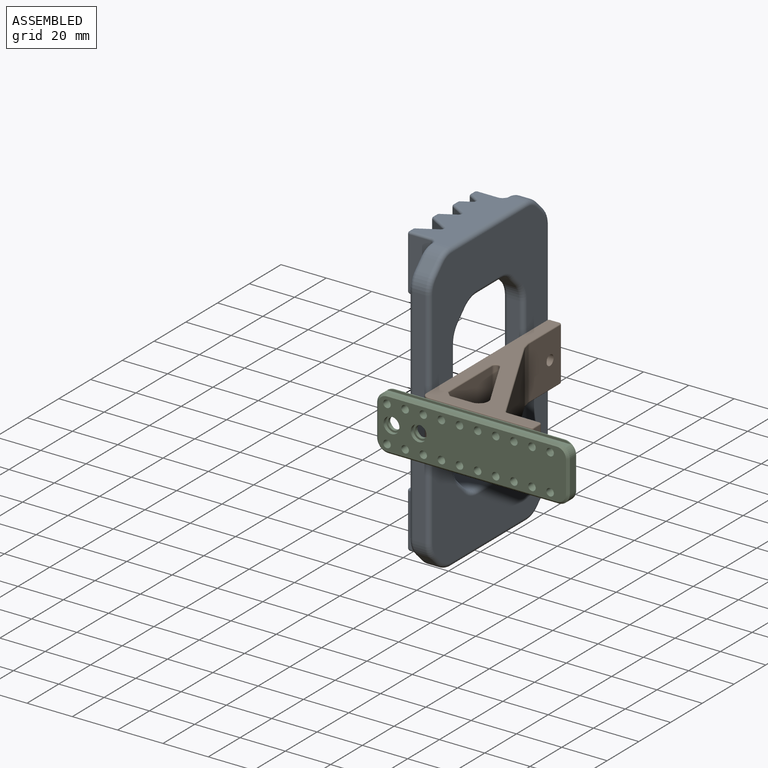
[diagram: assembled view]
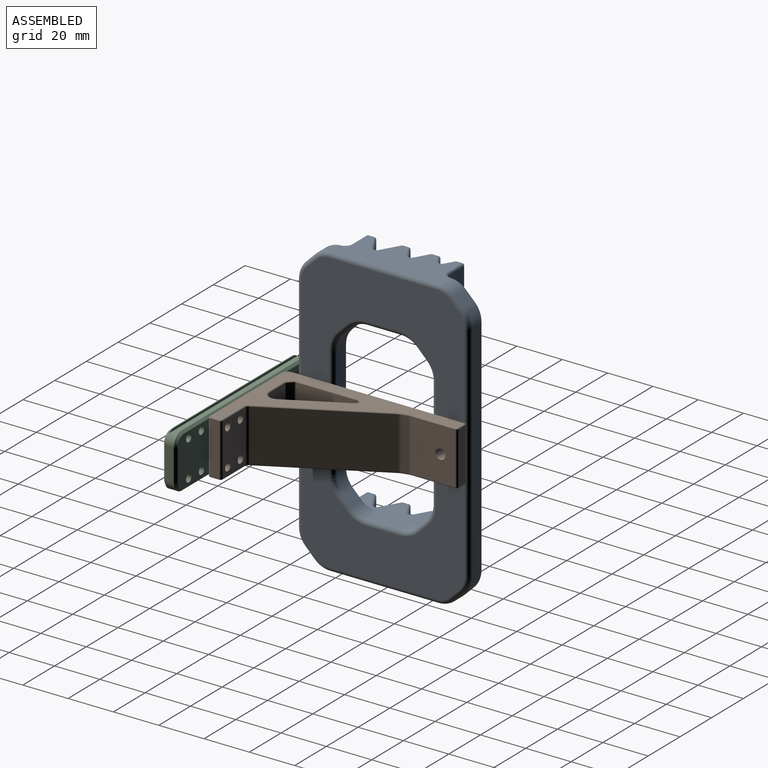
[diagram: assembled view, second angle]
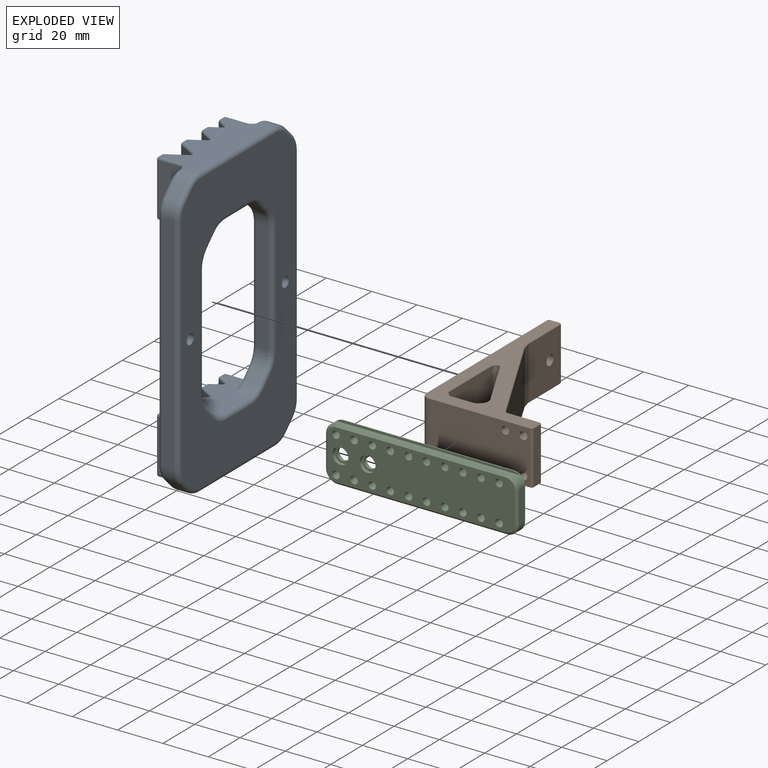
[diagram: exploded view]
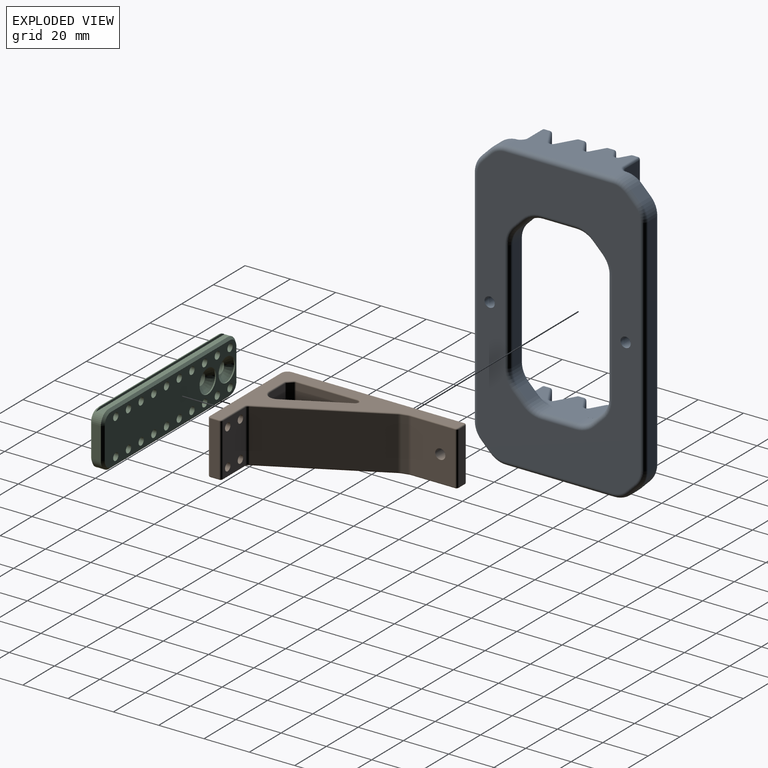
[diagram: exploded view, second angle]
ASSEMBLY  parts=3 mates=6
PART A: 269 faces, bbox 77.7x135.3x21.3 mm
  f0: plane 123.5x19.71mm, normal (0,0,1), area 1459.3mm2, adj f34,f95,f96,f97,f98,f99,f100,f101
  f1: plane 123.5x72mm, normal (0,0,-1), area 5117.8mm2, adj f33,f35,f63,f64,f65,f66,f67,f68
  f2: plane 23x9.13mm, normal (1,0,0), area 207mm2, adj f128,f164,f165,f170,f245
  f3: plane 23x9.13mm, normal (-1,0,0), area 207mm2, adj f127,f154,f155,f192,f258
  f4: plane 23x2.42mm, normal (0,0,1), area 55.7mm2, adj f139,f140,f197,f226
  f5: plane 23x2.45mm, normal (0,0,1), area 56.4mm2, adj f137,f142,f203,f238
  f6: plane 23x2.76mm, normal (0,0,1), area 63.5mm2, adj f132,f144,f209,f237
  f7: plane 23x2.42mm, normal (0,0,1), area 55.7mm2, adj f131,f138,f215,f225
  f8: plane 23x4mm, normal (0.87,0,0.5), area 106.2mm2, adj f144,f146,f211,f233
  f9: plane 23x4mm, normal (-0.87,0,0.5), area 106.2mm2, adj f131,f146,f213,f229
  f10: plane 23x6mm, normal (-0.87,0,0.5), area 159.3mm2, adj f132,f148,f207,f241
  f11: plane 23x6mm, normal (0.87,0,0.5), area 159.3mm2, adj f142,f148,f205,f242
  f12: plane 23x8mm, normal (0.87,0,0.5), area 212.5mm2, adj f140,f147,f199,f230
  f13: plane 23x8mm, normal (-0.87,0,0.5), area 212.5mm2, adj f137,f147,f201,f234
  f14: plane 23x2.42mm, normal (0,0,1), area 55.7mm2, adj f127,f135,f190,f262
  f15: plane 99.22x5.2mm, normal (-1,0,0), area 515.9mm2, adj f49,f50,f94,f108
  f16: plane 23x2.45mm, normal (0,0,1), area 56.4mm2, adj f134,f141,f184,f263
  f17: plane 23x2.76mm, normal (0,0,1), area 63.5mm2, adj f129,f143,f178,f253
  f18: plane 99.22x5.2mm, normal (1,0,0), area 515.9mm2, adj f53,f54,f79,f99
  f19: plane 23x2.42mm, normal (0,0,1), area 55.7mm2, adj f128,f145,f172,f247
  f20: plane 23x4mm, normal (0.87,0,0.5), area 106.2mm2, adj f129,f130,f176,f251
  f21: plane 23x4mm, normal (-0.87,0,0.5), area 106.2mm2, adj f130,f145,f174,f249
  f22: plane 23x6mm, normal (-0.87,0,0.5), area 159.3mm2, adj f133,f143,f180,f255
  f23: plane 23x6mm, normal (0.87,0,0.5), area 159.3mm2, adj f133,f134,f182,f259
  f24: plane 23x8mm, normal (0.87,0,0.5), area 212.5mm2, adj f135,f136,f188,f266
  f25: plane 23x8mm, normal (-0.87,0,0.5), area 212.5mm2, adj f136,f141,f186,f267
  f26: plane 23x9.13mm, normal (1,0,0), area 207mm2, adj f138,f159,f160,f217,f221
  f27: plane 23x9.13mm, normal (-1,0,0), area 207mm2, adj f139,f152,f153,f195,f222
  f28: plane 123.5x19.4mm, normal (0,0,1), area 1421.1mm2, adj f36,f104,f105,f106,f107,f108,f109,f110
  f29: plane 47.72x18.2mm, normal (0,1,0), area 654.6mm2, adj f47,f48,f87,f103,f104,f194,f195,f197
  f30: plane 47.72x18.2mm, normal (0,-1,0), area 654.6mm2, adj f51,f52,f86,f95,f112,f169,f170,f172
  f31: plane 41.31x18.27mm, normal (0,-1,0), area 398.1mm2, adj f55,f56,f70,f149,f150,f151,f161,f162
  f32: plane 41.31x18.27mm, normal (0,1,0), area 398.1mm2, adj f61,f62,f71,f156,f157,f158,f166,f167
  f33: cylinder r=2.25mm len=6.97mm, axis (0,0,1), area 98.5mm2, adj f1,f34
  f34: cone r=2.25mm half-angle=45deg, axis (0,0,1), area 66.7mm2, adj f0,f33
  f35: cylinder r=2.25mm len=6.97mm, axis (0,0,1), area 98.5mm2, adj f1,f36
  f36: cone r=2.25mm half-angle=45deg, axis (0,0,1), area 66.7mm2, adj f28,f35
  f37: plane 49.22x5.2mm, normal (-1,0,0), area 255.9mm2, adj f57,f58,f63,f116
  f38: plane 49.22x5.2mm, normal (1,0,0), area 255.9mm2, adj f59,f60,f78,f123
  f39: plane 5.2x4.14mm, normal (0.71,0.71,0), area 30.5mm2, adj f59,f61,f75,f121
  f40: plane 5.2x4.14mm, normal (-0.71,0.71,0), area 30.5mm2, adj f57,f62,f67,f114
  f41: plane 5.2x4.14mm, normal (0.71,-0.71,0), area 30.5mm2, adj f55,f60,f74,f125
  f42: plane 5.2x4.14mm, normal (-0.71,-0.71,0), area 30.5mm2, adj f56,f58,f66,f118
  f43: plane 5.2x4.14mm, normal (0.71,-0.71,0), area 30.5mm2, adj f51,f53,f82,f97
  f44: plane 5.2x4.14mm, normal (-0.71,-0.71,0), area 30.5mm2, adj f49,f52,f90,f110
  f45: plane 5.2x4.14mm, normal (-0.71,0.71,0), area 30.5mm2, adj f47,f50,f91,f106
  f46: plane 5.2x4.14mm, normal (0.71,0.71,0), area 30.5mm2, adj f48,f54,f83,f101
  f47: cylinder r=10mm len=7.07mm, axis (0,0,-1), area 40.8mm2, adj f29,f45,f89,f105
  f48: cylinder r=10mm len=7.07mm, axis (0,0,-1), area 40.8mm2, adj f29,f46,f85,f102
  f49: cylinder r=10mm len=7.07mm, axis (0,0,1), area 40.8mm2, adj f15,f44,f92,f109
  f50: cylinder r=10mm len=7.07mm, axis (0,0,1), area 40.8mm2, adj f15,f45,f93,f107
  f51: cylinder r=10mm len=7.07mm, axis (0,0,1), area 40.8mm2, adj f30,f43,f84,f96
  f52: cylinder r=10mm len=7.07mm, axis (0,0,1), area 40.8mm2, adj f30,f44,f88,f111
  f53: cylinder r=10mm len=7.07mm, axis (0,0,-1), area 40.8mm2, adj f18,f43,f80,f98
  f54: cylinder r=10mm len=7.07mm, axis (0,0,-1), area 40.8mm2, adj f18,f46,f81,f100
  f55: cylinder r=10mm len=7.07mm, axis (0,0,-1), area 40.8mm2, adj f31,f41,f72,f126
  f56: cylinder r=10mm len=7.07mm, axis (0,0,-1), area 40.8mm2, adj f31,f42,f68,f119
  f57: cylinder r=10mm len=7.07mm, axis (0,0,1), area 40.8mm2, adj f37,f40,f65,f115
  f58: cylinder r=10mm len=7.07mm, axis (0,0,1), area 40.8mm2, adj f37,f42,f64,f117
  f59: cylinder r=10mm len=7.07mm, axis (0,0,-1), area 40.8mm2, adj f38,f39,f77,f122
  f60: cylinder r=10mm len=7.07mm, axis (0,0,-1), area 40.8mm2, adj f38,f41,f76,f124
  f61: cylinder r=10mm len=7.07mm, axis (0,0,1), area 40.8mm2, adj f32,f39,f73,f120
  f62: cylinder r=10mm len=7.07mm, axis (0,0,1), area 40.8mm2, adj f32,f40,f69,f113
  f63: cylinder r=2mm len=49.22mm, axis (0,1,0), area 154.6mm2, adj f1,f37,f64,f65
  f64: torus R=12mm, axis (0,0,1), area 26.5mm2, adj f1,f58,f63,f66
  f65: torus R=12mm, axis (0,0,1), area 26.5mm2, adj f1,f57,f63,f67
  f66: cylinder r=2mm len=5.56mm, axis (0.71,-0.71,0), area 18.4mm2, adj f1,f42,f64,f68
  f67: cylinder r=2mm len=5.56mm, axis (0.71,0.71,0), area 18.4mm2, adj f1,f40,f65,f69
  f68: torus R=12mm, axis (0,0,1), area 26.5mm2, adj f1,f56,f66,f70
  f69: torus R=12mm, axis (0,0,1), area 26.5mm2, adj f1,f62,f67,f71
  f70: cylinder r=2mm len=14.95mm, axis (1,0,0), area 47mm2, adj f1,f31,f68,f72
  f71: cylinder r=2mm len=14.95mm, axis (-1,0,0), area 47mm2, adj f1,f32,f69,f73
  f72: torus R=12mm, axis (0,0,1), area 26.5mm2, adj f1,f55,f70,f74
  f73: torus R=12mm, axis (0,0,1), area 26.5mm2, adj f1,f61,f71,f75
  f74: cylinder r=2mm len=5.56mm, axis (-0.71,-0.71,0), area 18.4mm2, adj f1,f41,f72,f76
  f75: cylinder r=2mm len=5.56mm, axis (-0.71,0.71,0), area 18.4mm2, adj f1,f39,f73,f77
  f76: torus R=12mm, axis (0,0,1), area 26.5mm2, adj f1,f60,f74,f78
  f77: torus R=12mm, axis (0,0,1), area 26.5mm2, adj f1,f59,f75,f78
  f78: cylinder r=2mm len=49.22mm, axis (0,-1,0), area 154.6mm2, adj f1,f38,f76,f77
  f79: cylinder r=2mm len=99.22mm, axis (0,1,0), area 311.7mm2, adj f1,f18,f80,f81
  f80: torus R=8mm, axis (0,0,1), area 22.9mm2, adj f1,f53,f79,f82
  f81: torus R=8mm, axis (0,0,1), area 22.9mm2, adj f1,f54,f79,f83
  f82: cylinder r=2mm len=5.56mm, axis (-0.71,-0.71,0), area 18.4mm2, adj f1,f43,f80,f84
  f83: cylinder r=2mm len=5.56mm, axis (-0.71,0.71,0), area 18.4mm2, adj f1,f46,f81,f85
  f84: torus R=8mm, axis (0,0,1), area 22.9mm2, adj f1,f51,f82,f86
  f85: torus R=8mm, axis (0,0,1), area 22.9mm2, adj f1,f48,f83,f87
  f86: cylinder r=2mm len=47.72mm, axis (1,0,0), area 149.9mm2, adj f1,f30,f84,f88
  f87: cylinder r=2mm len=47.72mm, axis (-1,0,0), area 149.9mm2, adj f1,f29,f85,f89
  f88: torus R=8mm, axis (0,0,1), area 22.9mm2, adj f1,f52,f86,f90
  f89: torus R=8mm, axis (0,0,1), area 22.9mm2, adj f1,f47,f87,f91
  f90: cylinder r=2mm len=5.56mm, axis (0.71,-0.71,0), area 18.4mm2, adj f1,f44,f88,f92
  f91: cylinder r=2mm len=5.56mm, axis (0.71,0.71,0), area 18.4mm2, adj f1,f45,f89,f93
  f92: torus R=8mm, axis (0,0,1), area 22.9mm2, adj f1,f49,f90,f94
  f93: torus R=8mm, axis (0,0,1), area 22.9mm2, adj f1,f50,f91,f94
  f94: cylinder r=2mm len=99.22mm, axis (0,-1,0), area 311.7mm2, adj f1,f15,f92,f93
  f95: cylinder r=2mm len=2mm, axis (1,0,0), area 1.2mm2, adj f0,f30,f96,f164
  f96: torus R=8mm, axis (0,0,1), area 22.9mm2, adj f0,f51,f95,f97
  f97: cylinder r=2mm len=5.56mm, axis (-0.71,-0.71,0), area 18.4mm2, adj f0,f43,f96,f98
  f98: torus R=8mm, axis (0,0,1), area 22.9mm2, adj f0,f53,f97,f99
  f99: cylinder r=2mm len=99.22mm, axis (0,1,0), area 311.7mm2, adj f0,f18,f98,f100
  f100: torus R=8mm, axis (0,0,1), area 22.9mm2, adj f0,f54,f99,f101
  f101: cylinder r=2mm len=5.56mm, axis (-0.71,0.71,0), area 18.4mm2, adj f0,f46,f100,f102
  f102: torus R=8mm, axis (0,0,1), area 22.9mm2, adj f0,f48,f101,f103
  f103: cylinder r=2mm len=2mm, axis (-1,0,0), area 1.2mm2, adj f0,f29,f102,f159
  f104: cylinder r=2mm len=2mm, axis (1,0,0), area 0.3mm2, adj f28,f29,f105,f153
  f105: torus R=8mm, axis (0,0,1), area 22.9mm2, adj f28,f47,f104,f106
  f106: cylinder r=2mm len=5.56mm, axis (0.71,0.71,0), area 18.4mm2, adj f28,f45,f105,f107
  f107: torus R=8mm, axis (0,0,1), area 22.9mm2, adj f28,f50,f106,f108
  f108: cylinder r=2mm len=99.22mm, axis (0,1,0), area 311.7mm2, adj f15,f28,f107,f109
  f109: torus R=8mm, axis (0,0,1), area 22.9mm2, adj f28,f49,f108,f110
  f110: cylinder r=2mm len=5.56mm, axis (0.71,-0.71,0), area 18.4mm2, adj f28,f44,f109,f111
  f111: torus R=8mm, axis (0,0,1), area 22.9mm2, adj f28,f52,f110,f112
  f112: cylinder r=2mm len=2mm, axis (-1,0,0), area 0.3mm2, adj f28,f30,f111,f154
  f113: torus R=12mm, axis (0,0,1), area 11.3mm2, adj f62,f114,f168
  f114: cylinder r=2mm len=5.56mm, axis (0.71,0.71,0), area 18.3mm2, adj f0,f40,f113,f115,f167
  f115: torus R=12mm, axis (0,0,1), area 26.5mm2, adj f0,f57,f114,f116
  f116: cylinder r=2mm len=49.22mm, axis (0,-1,0), area 154.6mm2, adj f0,f37,f115,f117
  f117: torus R=12mm, axis (0,0,1), area 26.5mm2, adj f0,f58,f116,f118
  f118: cylinder r=2mm len=5.56mm, axis (0.71,-0.71,0), area 18.3mm2, adj f0,f42,f117,f119,f162
  f119: torus R=12mm, axis (0,0,1), area 11.3mm2, adj f56,f118,f163
  f120: torus R=12mm, axis (0,0,1), area 11.3mm2, adj f61,f121,f158
  f121: cylinder r=2mm len=5.56mm, axis (-0.71,0.71,0), area 18.3mm2, adj f28,f39,f120,f122,f157
  f122: torus R=12mm, axis (0,0,1), area 26.5mm2, adj f28,f59,f121,f123
  f123: cylinder r=2mm len=49.22mm, axis (0,1,0), area 154.6mm2, adj f28,f38,f122,f124
  f124: torus R=12mm, axis (0,0,1), area 26.5mm2, adj f28,f60,f123,f125
  f125: cylinder r=2mm len=5.56mm, axis (-0.71,-0.71,0), area 18.3mm2, adj f28,f41,f124,f126,f150
  f126: torus R=12mm, axis (0,0,1), area 11.3mm2, adj f55,f125,f149
  f127: cylinder r=1mm len=23mm, axis (0,-1,0), area 36.1mm2, adj f3,f14,f191,f260
  f128: cylinder r=1mm len=23mm, axis (0,1,0), area 36.1mm2, adj f2,f19,f171,f246
  f129: cylinder r=1mm len=23mm, axis (0,1,0), area 24.1mm2, adj f17,f20,f177,f252
  f130: cylinder r=1mm len=23mm, axis (0,1,0), area 48.2mm2, adj f20,f21,f175,f250
  f131: cylinder r=1mm len=23mm, axis (0,-1,0), area 24.1mm2, adj f7,f9,f214,f227
  f132: cylinder r=1mm len=23mm, axis (0,-1,0), area 24.1mm2, adj f6,f10,f208,f239
  f133: cylinder r=1mm len=23mm, axis (0,1,0), area 48.2mm2, adj f22,f23,f181,f257
  f134: cylinder r=1mm len=23mm, axis (0,1,0), area 24.1mm2, adj f16,f23,f183,f261
  f135: cylinder r=1mm len=23mm, axis (0,1,0), area 24.1mm2, adj f14,f24,f189,f264
  f136: cylinder r=1mm len=23mm, axis (0,1,0), area 48.2mm2, adj f24,f25,f187,f268
  f137: cylinder r=1mm len=23mm, axis (0,-1,0), area 24.1mm2, adj f5,f13,f202,f236
  f138: cylinder r=1mm len=23mm, axis (0,1,0), area 36.1mm2, adj f7,f26,f216,f223
  f139: cylinder r=1mm len=23mm, axis (0,-1,0), area 36.1mm2, adj f4,f27,f196,f224
  f140: cylinder r=1mm len=23mm, axis (0,1,0), area 24.1mm2, adj f4,f12,f198,f228
  f141: cylinder r=1mm len=23mm, axis (0,-1,0), area 24.1mm2, adj f16,f25,f185,f265
  f142: cylinder r=1mm len=23mm, axis (0,1,0), area 24.1mm2, adj f5,f11,f204,f240
  f143: cylinder r=1mm len=23mm, axis (0,-1,0), area 24.1mm2, adj f17,f22,f179,f254
  f144: cylinder r=1mm len=23mm, axis (0,1,0), area 24.1mm2, adj f6,f8,f210,f235
  f145: cylinder r=1mm len=23mm, axis (0,-1,0), area 24.1mm2, adj f19,f21,f173,f248
  f146: cylinder r=1mm len=23mm, axis (0,1,0), area 48.2mm2, adj f8,f9,f212,f231
  f147: cylinder r=1mm len=23mm, axis (0,1,0), area 48.2mm2, adj f12,f13,f200,f232
  f148: cylinder r=1mm len=23mm, axis (0,1,0), area 48.2mm2, adj f10,f11,f206,f243
  f149: bspline ~8.74x4mm, area 12.5mm2, adj f31,f126,f150
  f150: bspline ~2.09x2.07mm, area 2.5mm2, adj f31,f125,f149,f151
  f151: cylinder r=2mm len=7.17mm, axis (-1,0,0), area 16.5mm2, adj f28,f31,f150,f220
  f152: cylinder r=2mm len=25mm, axis (0,1,0), area 72.5mm2, adj f27,f28,f153,f220
  f153: torus R=4mm, axis (-1,0,0), area 5.2mm2, adj f27,f104,f152,f194
  f154: torus R=4mm, axis (-1,0,0), area 5.2mm2, adj f3,f112,f155,f193
  f155: cylinder r=2mm len=25mm, axis (0,1,0), area 72.5mm2, adj f3,f28,f154,f256
  f156: cylinder r=2mm len=7.17mm, axis (-1,0,0), area 16.5mm2, adj f28,f32,f157,f256
  f157: bspline ~2.03x2mm, area 2.5mm2, adj f32,f121,f156,f158
  f158: bspline ~8.74x4mm, area 12.5mm2, adj f32,f120,f157
  f159: torus R=4mm, axis (-1,0,0), area 5.2mm2, adj f26,f103,f160,f218
  f160: cylinder r=2mm len=25mm, axis (0,-1,0), area 72.5mm2, adj f0,f26,f159,f219
  f161: cylinder r=2mm len=7.17mm, axis (-1,0,0), area 16.5mm2, adj f0,f31,f162,f219
  f162: bspline ~2.03x2mm, area 2.5mm2, adj f31,f118,f161,f163
  f163: bspline ~8.62x4mm, area 11.6mm2, adj f31,f119,f162
  f164: torus R=4mm, axis (-1,0,0), area 5.2mm2, adj f2,f95,f165,f169
  f165: cylinder r=2mm len=25mm, axis (0,-1,0), area 72.5mm2, adj f0,f2,f164,f244
  f166: cylinder r=2mm len=7.17mm, axis (-1,0,0), area 16.5mm2, adj f0,f32,f167,f244
  f167: bspline ~2.03x2mm, area 2.5mm2, adj f32,f114,f166,f168
  f168: bspline ~8.62x4mm, area 11.6mm2, adj f32,f113,f167
  f169: bspline ~4.55x3mm, area 4.6mm2, adj f30,f164,f170
  f170: cylinder r=1mm len=9.13mm, axis (0,0,1), area 14.3mm2, adj f2,f30,f169,f171
  f171: sphere r=1mm, area 1mm2, adj f128,f170,f172
  f172: cylinder r=1mm len=2.42mm, axis (-1,0,0), area 3.8mm2, adj f19,f30,f171,f173
  f173: sphere r=1mm, area 1mm2, adj f145,f172,f174
  f174: cylinder r=1mm len=4.5mm, axis (0.5,0,0.87), area 7.3mm2, adj f21,f30,f173,f175
  f175: torus R=2mm, axis (0,1,0), area 4.5mm2, adj f30,f130,f174,f176
  f176: cylinder r=1mm len=4.5mm, axis (0.5,0,-0.87), area 7.3mm2, adj f20,f30,f175,f177
  f177: sphere r=1mm, area 0.7mm2, adj f129,f176,f178
  f178: cylinder r=1mm len=2.76mm, axis (-1,0,0), area 4.3mm2, adj f17,f30,f177,f179
  f179: sphere r=1mm, area 1mm2, adj f143,f178,f180
  f180: cylinder r=1mm len=6.5mm, axis (0.5,0,0.87), area 10.9mm2, adj f22,f30,f179,f181
  f181: torus R=2mm, axis (0,1,0), area 4.5mm2, adj f30,f133,f180,f182
  f182: cylinder r=1mm len=6.5mm, axis (0.5,0,-0.87), area 10.9mm2, adj f23,f30,f181,f183
  f183: sphere r=1mm, area 0.7mm2, adj f134,f182,f184
  f184: cylinder r=1mm len=2.45mm, axis (-1,0,0), area 3.9mm2, adj f16,f30,f183,f185
  f185: sphere r=1mm, area 1mm2, adj f141,f184,f186
  f186: cylinder r=1mm len=8.5mm, axis (0.5,0,0.87), area 14.5mm2, adj f25,f30,f185,f187
  f187: torus R=2mm, axis (0,1,0), area 4.5mm2, adj f30,f136,f186,f188
  f188: cylinder r=1mm len=8.5mm, axis (0.5,0,-0.87), area 14.5mm2, adj f24,f30,f187,f189
  f189: sphere r=1mm, area 0.7mm2, adj f135,f188,f190
  f190: cylinder r=1mm len=2.42mm, axis (-1,0,0), area 3.8mm2, adj f14,f30,f189,f191
  f191: sphere r=1mm, area 1.6mm2, adj f127,f190,f192
  f192: cylinder r=1mm len=9.13mm, axis (0,0,-1), area 14.3mm2, adj f3,f30,f191,f193
  f193: bspline ~3.87x3mm, area 4.6mm2, adj f30,f154,f192
  f194: bspline ~3.87x3mm, area 4.6mm2, adj f29,f153,f195
  f195: cylinder r=1mm len=9.13mm, axis (0,0,1), area 14.3mm2, adj f27,f29,f194,f196
  f196: sphere r=1mm, area 1.6mm2, adj f139,f195,f197
  f197: cylinder r=1mm len=2.42mm, axis (1,0,0), area 3.8mm2, adj f4,f29,f196,f198
  f198: sphere r=1mm, area 0.7mm2, adj f140,f197,f199
  f199: cylinder r=1mm len=8.5mm, axis (-0.5,0,0.87), area 14.5mm2, adj f12,f29,f198,f200
  f200: torus R=2mm, axis (0,1,0), area 4.5mm2, adj f29,f147,f199,f201
  f201: cylinder r=1mm len=8.5mm, axis (-0.5,0,-0.87), area 14.5mm2, adj f13,f29,f200,f202
  f202: sphere r=1mm, area 1mm2, adj f137,f201,f203
  f203: cylinder r=1mm len=2.45mm, axis (1,0,0), area 3.9mm2, adj f5,f29,f202,f204
  f204: sphere r=1mm, area 0.7mm2, adj f142,f203,f205
  f205: cylinder r=1mm len=6.5mm, axis (-0.5,0,0.87), area 10.9mm2, adj f11,f29,f204,f206
  f206: torus R=2mm, axis (0,1,0), area 4.5mm2, adj f29,f148,f205,f207
  f207: cylinder r=1mm len=6.5mm, axis (-0.5,0,-0.87), area 10.9mm2, adj f10,f29,f206,f208
  f208: sphere r=1mm, area 1mm2, adj f132,f207,f209
  f209: cylinder r=1mm len=2.76mm, axis (1,0,0), area 4.3mm2, adj f6,f29,f208,f210
  f210: sphere r=1mm, area 0.7mm2, adj f144,f209,f211
  f211: cylinder r=1mm len=4.5mm, axis (-0.5,0,0.87), area 7.3mm2, adj f8,f29,f210,f212
  f212: torus R=2mm, axis (0,1,0), area 4.5mm2, adj f29,f146,f211,f213
  f213: cylinder r=1mm len=4.5mm, axis (-0.5,0,-0.87), area 7.3mm2, adj f9,f29,f212,f214
  f214: sphere r=1mm, area 1mm2, adj f131,f213,f215
  f215: cylinder r=1mm len=2.42mm, axis (1,0,0), area 3.8mm2, adj f7,f29,f214,f216
  f216: sphere r=1mm, area 1mm2, adj f138,f215,f217
  f217: cylinder r=1mm len=9.13mm, axis (0,0,-1), area 14.3mm2, adj f26,f29,f216,f218
  f218: bspline ~4.55x3mm, area 4.6mm2, adj f29,f159,f217
  f219: bspline ~3x3mm, area 2.1mm2, adj f160,f161,f221
  f220: bspline ~3x3mm, area 2.1mm2, adj f151,f152,f222
  f221: cylinder r=1mm len=9mm, axis (0,0,1), area 14.1mm2, adj f26,f31,f219,f223
  f222: cylinder r=1mm len=9mm, axis (0,0,-1), area 14.1mm2, adj f27,f31,f220,f224
  f223: sphere r=1mm, area 2.1mm2, adj f138,f221,f225
  f224: sphere r=1mm, area 1.6mm2, adj f139,f222,f226
  f225: cylinder r=1mm len=2.42mm, axis (1,0,0), area 3.8mm2, adj f7,f31,f223,f227
  f226: cylinder r=1mm len=2.42mm, axis (1,0,0), area 3.8mm2, adj f4,f31,f224,f228
  f227: sphere r=1mm, area 1mm2, adj f131,f225,f229
  f228: sphere r=1mm, area 1mm2, adj f140,f226,f230
  f229: cylinder r=1mm len=4.5mm, axis (0.5,0,0.87), area 7.3mm2, adj f9,f31,f227,f231
  f230: cylinder r=1mm len=8.5mm, axis (0.5,0,-0.87), area 14.5mm2, adj f12,f31,f228,f232
  f231: torus R=2mm, axis (0,-1,0), area 4.5mm2, adj f31,f146,f229,f233
  f232: torus R=2mm, axis (0,-1,0), area 4.5mm2, adj f31,f147,f230,f234
  f233: cylinder r=1mm len=4.5mm, axis (0.5,0,-0.87), area 7.3mm2, adj f8,f31,f231,f235
  f234: cylinder r=1mm len=8.5mm, axis (0.5,0,0.87), area 14.5mm2, adj f13,f31,f232,f236
  f235: sphere r=1mm, area 1mm2, adj f144,f233,f237
  f236: sphere r=1mm, area 1mm2, adj f137,f234,f238
  f237: cylinder r=1mm len=2.76mm, axis (1,0,0), area 4.3mm2, adj f6,f31,f235,f239
  f238: cylinder r=1mm len=2.45mm, axis (1,0,0), area 3.9mm2, adj f5,f31,f236,f240
  f239: sphere r=1mm, area 1mm2, adj f132,f237,f241
  f240: sphere r=1mm, area 1mm2, adj f142,f238,f242
  f241: cylinder r=1mm len=6.5mm, axis (0.5,0,0.87), area 10.9mm2, adj f10,f31,f239,f243
  f242: cylinder r=1mm len=6.5mm, axis (0.5,0,-0.87), area 10.9mm2, adj f11,f31,f240,f243
  f243: torus R=2mm, axis (0,-1,0), area 4.5mm2, adj f31,f148,f241,f242
  f244: bspline ~3x3mm, area 2.1mm2, adj f165,f166,f245
  f245: cylinder r=1mm len=9mm, axis (0,0,-1), area 14.1mm2, adj f2,f32,f244,f246
  f246: sphere r=1mm, area 1mm2, adj f128,f245,f247
  f247: cylinder r=1mm len=2.42mm, axis (-1,0,0), area 3.8mm2, adj f19,f32,f246,f248
  f248: sphere r=1mm, area 1mm2, adj f145,f247,f249
  f249: cylinder r=1mm len=4.5mm, axis (-0.5,0,-0.87), area 7.3mm2, adj f21,f32,f248,f250
  f250: torus R=2mm, axis (0,-1,0), area 4.5mm2, adj f32,f130,f249,f251
  f251: cylinder r=1mm len=4.5mm, axis (-0.5,0,0.87), area 7.3mm2, adj f20,f32,f250,f252
  f252: sphere r=1mm, area 1mm2, adj f129,f251,f253
  f253: cylinder r=1mm len=2.76mm, axis (-1,0,0), area 4.3mm2, adj f17,f32,f252,f254
  f254: sphere r=1mm, area 1mm2, adj f143,f253,f255
  f255: cylinder r=1mm len=6.5mm, axis (-0.5,0,-0.87), area 10.9mm2, adj f22,f32,f254,f257
  f256: bspline ~3x3mm, area 2.1mm2, adj f155,f156,f258
  f257: torus R=2mm, axis (0,-1,0), area 4.5mm2, adj f32,f133,f255,f259
  f258: cylinder r=1mm len=9mm, axis (0,0,1), area 14.1mm2, adj f3,f32,f256,f260
  f259: cylinder r=1mm len=6.5mm, axis (-0.5,0,0.87), area 10.9mm2, adj f23,f32,f257,f261
  f260: sphere r=1mm, area 2.1mm2, adj f127,f258,f262
  f261: sphere r=1mm, area 1mm2, adj f134,f259,f263
  f262: cylinder r=1mm len=2.42mm, axis (-1,0,0), area 3.8mm2, adj f14,f32,f260,f264
  f263: cylinder r=1mm len=2.45mm, axis (-1,0,0), area 3.9mm2, adj f16,f32,f261,f265
  f264: sphere r=1mm, area 1.2mm2, adj f135,f262,f266
  f265: sphere r=1mm, area 1mm2, adj f141,f263,f267
  f266: cylinder r=1mm len=8.5mm, axis (-0.5,0,0.87), area 14.5mm2, adj f24,f32,f264,f268
  f267: cylinder r=1mm len=8.5mm, axis (-0.5,0,-0.87), area 14.5mm2, adj f25,f32,f265,f268
  f268: torus R=2mm, axis (0,-1,0), area 4.5mm2, adj f32,f136,f266,f267
PART B: 80 faces, bbox 49.3x80.3x24 mm
  f0: plane 27.09x23mm, normal (1,0,0), area 607.1mm2, adj f13,f25,f27,f70,f77
  f1: plane 24.83x23mm, normal (-0.88,-0.47,0), area 646.2mm2, adj f24,f25,f66,f73
  f2: plane 76x23mm, normal (-1,0,0), area 1716.2mm2, adj f12,f13,f21,f22,f38,f53
  f3: plane 45x23mm, normal (0,-1,0), area 998.7mm2, adj f14,f15,f16,f17,f18,f22,f34,f49
  f4: plane 23x4mm, normal (1,0,0), area 92mm2, adj f18,f19,f33,f50
  f5: plane 23x14.1mm, normal (0,1,0), area 287.9mm2, adj f14,f15,f16,f17,f19,f28,f37,f54
  f6: plane 47.89x25.36mm, normal (0.88,0.47,0), area 1246.4mm2, adj f28,f30,f41,f58
  f7: plane 23x19.39mm, normal (1,0,0), area 430mm2, adj f12,f20,f31,f46,f61
  f8: plane 23x4mm, normal (0,1,0), area 92mm2, adj f20,f21,f42,f57
  f9: plane 23x9.52mm, normal (0,1,0), area 219mm2, adj f24,f26,f65,f74
  f10: plane 79x48mm, normal (0,0,1), area 942.6mm2, adj f32,f33,f34,f35,f36,f37,f38,f39
  f11: plane 79x48mm, normal (0,0,-1), area 942.6mm2, adj f48,f49,f50,f51,f52,f53,f54,f55
  f12: cylinder r=2.25mm len=6mm, axis (-1,0,0), area 84.8mm2, adj f2,f7
  f13: cylinder r=2.25mm len=6mm, axis (-1,0,0), area 84.8mm2, adj f0,f2
  f14: cylinder r=1.7mm len=6mm, axis (0,-1,0), area 64.1mm2, adj f3,f5
  f15: cylinder r=1.7mm len=6mm, axis (0,-1,0), area 64.1mm2, adj f3,f5
  f16: cylinder r=1.7mm len=6mm, axis (0,-1,0), area 64.1mm2, adj f3,f5
  f17: cylinder r=1.7mm len=6mm, axis (0,-1,0), area 64.1mm2, adj f3,f5
  f18: cylinder r=1mm len=23mm, axis (0,0,-1), area 36.1mm2, adj f3,f4,f32,f48
  f19: cylinder r=1mm len=23mm, axis (0,0,-1), area 36.1mm2, adj f4,f5,f35,f52
  f20: cylinder r=1mm len=23mm, axis (0,0,-1), area 36.1mm2, adj f7,f8,f44,f59
  f21: cylinder r=1mm len=23mm, axis (0,0,-1), area 36.1mm2, adj f2,f8,f40,f55
  f22: cylinder r=3mm len=23mm, axis (0,0,1), area 108.4mm2, adj f2,f3,f36,f51
  f23: plane 23x1.91mm, normal (0.71,0.71,0), area 62.3mm2, adj f26,f27,f69,f78
  f24: cylinder r=4mm len=23mm, axis (0,0,1), area 189.3mm2, adj f1,f9,f64,f72
  f25: cylinder r=1.5mm len=23mm, axis (0,0,1), area 91.6mm2, adj f0,f1,f68,f75
  f26: cylinder r=1mm len=23mm, axis (0,0,1), area 18.1mm2, adj f9,f23,f67,f76
  f27: cylinder r=1mm len=23mm, axis (0,0,-1), area 18.1mm2, adj f0,f23,f71,f79
  f28: cylinder r=1.5mm len=23mm, axis (0,0,-1), area 37.4mm2, adj f5,f6,f39,f56
  f29: plane 23x2.58mm, normal (0.97,0.24,0), area 61.2mm2, adj f30,f31,f45,f62
  f30: cylinder r=5mm len=23mm, axis (0,0,-1), area 28mm2, adj f6,f29,f43,f60
  f31: cylinder r=5mm len=23mm, axis (0,0,1), area 28mm2, adj f7,f29,f47,f63
  f32: torus R=0.5mm, axis (0,0,1), area 1mm2, adj f10,f18,f33,f34
  f33: cylinder r=0.5mm len=4mm, axis (0,-1,0), area 3.1mm2, adj f4,f10,f32,f35
  f34: cylinder r=0.5mm len=45mm, axis (-1,0,0), area 35.3mm2, adj f3,f10,f32,f36
  f35: torus R=0.5mm, axis (0,0,1), area 1mm2, adj f10,f19,f33,f37
  f36: torus R=2.5mm, axis (0,0,1), area 3.5mm2, adj f10,f22,f34,f38
  f37: cylinder r=0.5mm len=14.1mm, axis (1,0,0), area 11.1mm2, adj f5,f10,f35,f39
  f38: cylinder r=0.5mm len=76mm, axis (0,1,0), area 59.7mm2, adj f2,f10,f36,f40
  f39: torus R=2mm, axis (0,0,1), area 1.4mm2, adj f10,f28,f37,f41
  f40: torus R=0.5mm, axis (0,0,1), area 1mm2, adj f10,f21,f38,f42
  f41: cylinder r=0.5mm len=48.13mm, axis (0.47,-0.88,0), area 42.6mm2, adj f6,f10,f39,f43
  f42: cylinder r=0.5mm len=4mm, axis (1,0,0), area 3.1mm2, adj f8,f10,f40,f44
  f43: torus R=5.5mm, axis (0,0,1), area 1mm2, adj f10,f30,f41,f45
  f44: torus R=0.5mm, axis (0,0,1), area 1mm2, adj f10,f20,f42,f46
  f45: cylinder r=0.5mm len=2.7mm, axis (-0.24,0.97,0), area 2.1mm2, adj f10,f29,f43,f47
  f46: cylinder r=0.5mm len=19.39mm, axis (0,-1,0), area 15.2mm2, adj f7,f10,f44,f47
  f47: torus R=5.5mm, axis (0,0,1), area 1mm2, adj f10,f31,f45,f46
  f48: torus R=0.5mm, axis (0,0,1), area 1mm2, adj f11,f18,f49,f50
  f49: cylinder r=0.5mm len=45mm, axis (1,0,0), area 35.3mm2, adj f3,f11,f48,f51
  f50: cylinder r=0.5mm len=4mm, axis (0,1,0), area 3.1mm2, adj f4,f11,f48,f52
  f51: torus R=2.5mm, axis (0,0,1), area 3.5mm2, adj f11,f22,f49,f53
  f52: torus R=0.5mm, axis (0,0,1), area 1mm2, adj f11,f19,f50,f54
  f53: cylinder r=0.5mm len=76mm, axis (0,-1,0), area 59.7mm2, adj f2,f11,f51,f55
  f54: cylinder r=0.5mm len=14.1mm, axis (-1,0,0), area 11.1mm2, adj f5,f11,f52,f56
  f55: torus R=0.5mm, axis (0,0,1), area 1mm2, adj f11,f21,f53,f57
  f56: torus R=2mm, axis (0,0,1), area 1.4mm2, adj f11,f28,f54,f58
  f57: cylinder r=0.5mm len=4mm, axis (-1,0,0), area 3.1mm2, adj f8,f11,f55,f59
  f58: cylinder r=0.5mm len=48.13mm, axis (-0.47,0.88,0), area 42.6mm2, adj f6,f11,f56,f60
  f59: torus R=0.5mm, axis (0,0,1), area 1mm2, adj f11,f20,f57,f61
  f60: torus R=5.5mm, axis (0,0,1), area 1mm2, adj f11,f30,f58,f62
  f61: cylinder r=0.5mm len=19.39mm, axis (0,1,0), area 15.2mm2, adj f7,f11,f59,f63
  f62: cylinder r=0.5mm len=2.7mm, axis (-0.24,0.97,0), area 2.1mm2, adj f11,f29,f60,f63
  f63: torus R=5.5mm, axis (0,0,1), area 1mm2, adj f11,f31,f61,f62
  f64: torus R=4.5mm, axis (0,0,1), area 6.8mm2, adj f10,f24,f65,f66
  f65: cylinder r=0.5mm len=9.52mm, axis (1,0,0), area 7.5mm2, adj f9,f10,f64,f67
  f66: cylinder r=0.5mm len=25.06mm, axis (-0.47,0.88,0), area 22.1mm2, adj f1,f10,f64,f68
  f67: torus R=1.5mm, axis (0,0,1), area 0.7mm2, adj f10,f26,f65,f69
  f68: torus R=2mm, axis (0,0,1), area 3.5mm2, adj f10,f25,f66,f70
  f69: cylinder r=0.5mm len=2.27mm, axis (-0.71,0.71,0), area 2.1mm2, adj f10,f23,f67,f71
  f70: cylinder r=0.5mm len=27.09mm, axis (0,-1,0), area 21.3mm2, adj f0,f10,f68,f71
  f71: torus R=1.5mm, axis (0,0,1), area 0.7mm2, adj f10,f27,f69,f70
  f72: torus R=4.5mm, axis (0,0,1), area 6.8mm2, adj f11,f24,f73,f74
  f73: cylinder r=0.5mm len=25.06mm, axis (0.47,-0.88,0), area 22.1mm2, adj f1,f11,f72,f75
  f74: cylinder r=0.5mm len=9.52mm, axis (-1,0,0), area 7.5mm2, adj f9,f11,f72,f76
  f75: torus R=2mm, axis (0,0,1), area 3.5mm2, adj f11,f25,f73,f77
  f76: torus R=1.5mm, axis (0,0,1), area 0.7mm2, adj f11,f26,f74,f78
  f77: cylinder r=0.5mm len=27.09mm, axis (0,1,0), area 21.3mm2, adj f0,f11,f75,f79
  f78: cylinder r=0.5mm len=2.27mm, axis (-0.71,0.71,0), area 2.1mm2, adj f11,f23,f76,f79
  f79: torus R=1.5mm, axis (0,0,1), area 0.7mm2, adj f11,f27,f77,f78
PART C: 64 faces, bbox 85x24x6 mm
  f0: cylinder r=3.5mm len=7mm, axis (0,0,-1), area 35.2mm2, adj f28,f37
  f1: cylinder r=3.5mm len=7mm, axis (0,0,-1), area 35.2mm2, adj f28,f38
  f2: cylinder r=1.65mm len=6mm, axis (0,0,1), area 62.2mm2, adj f28,f39
  f3: cylinder r=1.65mm len=6mm, axis (0,0,1), area 62.2mm2, adj f28,f39
  f4: cylinder r=1.65mm len=6mm, axis (0,0,1), area 62.2mm2, adj f28,f39
  f5: cylinder r=1.65mm len=6mm, axis (0,0,1), area 62.2mm2, adj f28,f39
  f6: cylinder r=1.65mm len=6mm, axis (0,0,1), area 62.2mm2, adj f28,f39
  f7: cylinder r=1.65mm len=6mm, axis (0,0,1), area 62.2mm2, adj f28,f39
  f8: cylinder r=1.65mm len=6mm, axis (0,0,1), area 62.2mm2, adj f28,f39
  f9: cylinder r=1.65mm len=6mm, axis (0,0,1), area 62.2mm2, adj f28,f39
  f10: cylinder r=1.65mm len=6mm, axis (0,0,1), area 62.2mm2, adj f28,f39
  f11: cylinder r=1.65mm len=6mm, axis (0,0,1), area 62.2mm2, adj f28,f39
  f12: cylinder r=1.65mm len=6mm, axis (0,0,1), area 62.2mm2, adj f28,f39
  f13: cylinder r=1.65mm len=6mm, axis (0,0,1), area 62.2mm2, adj f28,f39
  f14: cylinder r=1.65mm len=6mm, axis (0,0,1), area 62.2mm2, adj f28,f39
  f15: cylinder r=1.65mm len=6mm, axis (0,0,1), area 62.2mm2, adj f28,f39
  f16: cylinder r=1.65mm len=6mm, axis (0,0,1), area 62.2mm2, adj f28,f39
  f17: cylinder r=1.65mm len=6mm, axis (0,0,1), area 62.2mm2, adj f28,f39
  f18: cylinder r=1.65mm len=6mm, axis (0,0,1), area 62.2mm2, adj f28,f39
  f19: cylinder r=1.65mm len=6mm, axis (0,0,1), area 62.2mm2, adj f28,f39
  f20: cylinder r=1.65mm len=6mm, axis (0,0,1), area 62.2mm2, adj f28,f39
  f21: cylinder r=1.65mm len=6mm, axis (0,0,1), area 62.2mm2, adj f28,f39
  f22: cylinder r=2.65mm len=5.3mm, axis (0,0,1), area 22.5mm2, adj f26,f37
  f23: cylinder r=2.65mm len=5.3mm, axis (0,0,1), area 22.5mm2, adj f27,f38
  f24: cylinder r=5.2mm len=10.4mm, axis (0,0,1), area 16.3mm2, adj f27,f39
  f25: cylinder r=5.2mm len=10.4mm, axis (0,0,1), area 16.3mm2, adj f26,f39
  f26: cone r=5.2mm half-angle=45deg, axis (0,0,1), area 88.9mm2, adj f22,f25
  f27: cone r=5.2mm half-angle=45deg, axis (0,0,1), area 88.9mm2, adj f23,f24
  f28: plane 83x22mm, normal (0,0,-1), area 1564.2mm2, adj f0,f1,f2,f3,f4,f5,f6,f7
  f29: plane 75x1mm, normal (0,-0.71,-0.71), area 106.1mm2, adj f28,f30,f36,f40
  f30: cone r=5mm half-angle=45deg, axis (0,0,1), area 10mm2, adj f28,f29,f31,f41
  f31: plane 14x1mm, normal (0.71,0,-0.71), area 19.8mm2, adj f28,f30,f32,f42
  f32: cone r=5mm half-angle=45deg, axis (0,0,1), area 10mm2, adj f28,f31,f33,f43
  f33: plane 75x1mm, normal (0,0.71,-0.71), area 106.1mm2, adj f28,f32,f34,f44
  f34: cone r=5mm half-angle=45deg, axis (0,0,1), area 10mm2, adj f28,f33,f35,f45
  f35: plane 14x1mm, normal (-0.71,0,-0.71), area 19.8mm2, adj f28,f34,f36,f46
  f36: cone r=5mm half-angle=45deg, axis (0,0,1), area 10mm2, adj f28,f29,f35,f47
  f37: plane 7x7mm, normal (0,0,-1), area 16.4mm2, adj f0,f22
  f38: plane 7x7mm, normal (0,0,-1), area 16.4mm2, adj f1,f23
  f39: plane 83x22mm, normal (0,0,1), area 1471.3mm2, adj f2,f3,f4,f5,f6,f7,f8,f9
  f40: plane 75x0.45mm, normal (0,-1,0), area 33.7mm2, adj f29,f41,f47,f56
  f41: cylinder r=5mm len=5mm, axis (0,0,-1), area 21.4mm2, adj f30,f40,f42,f53,f56,f57,f58,f63
  f42: plane 14x4mm, normal (1,0,0), area 56mm2, adj f31,f41,f43,f54
  f43: cylinder r=5mm len=5mm, axis (0,0,-1), area 21.4mm2, adj f32,f42,f44,f55,f59,f60,f61,f62
  f44: plane 75x0.45mm, normal (0,1,0), area 33.7mm2, adj f33,f43,f45,f61
  f45: cylinder r=5mm len=5mm, axis (0,0,-1), area 21.4mm2, adj f34,f44,f46,f49,f59,f60,f61,f62
  f46: plane 14x4mm, normal (-1,0,0), area 56mm2, adj f35,f45,f47,f50
  f47: cylinder r=5mm len=5mm, axis (0,0,-1), area 21.4mm2, adj f36,f40,f46,f51,f56,f57,f58,f63
  f48: plane 75x1mm, normal (0,0.71,0.71), area 106.1mm2, adj f39,f49,f55,f62
  f49: cone r=5mm half-angle=45deg, axis (0,0,-1), area 10mm2, adj f39,f45,f48,f50
  f50: plane 14x1mm, normal (-0.71,0,0.71), area 19.8mm2, adj f39,f46,f49,f51
  f51: cone r=5mm half-angle=45deg, axis (0,0,-1), area 10mm2, adj f39,f47,f50,f52
  f52: plane 75x1mm, normal (0,-0.71,0.71), area 106.1mm2, adj f39,f51,f53,f63
  f53: cone r=5mm half-angle=45deg, axis (0,0,-1), area 10mm2, adj f39,f41,f52,f54
  f54: plane 14x1mm, normal (0.71,0,0.71), area 19.8mm2, adj f39,f42,f53,f55
  f55: cone r=5mm half-angle=45deg, axis (0,0,-1), area 10mm2, adj f39,f43,f48,f54
  f56: plane 81x1mm, normal (0,0,1), area 79.1mm2, adj f40,f41,f47,f57
  f57: plane 81x3.1mm, normal (0,-1,0), area 251.1mm2, adj f41,f47,f56,f58
  f58: plane 81x1mm, normal (0,0,-1), area 79.1mm2, adj f41,f47,f57,f63
  f59: plane 81x1mm, normal (0,0,-1), area 79.1mm2, adj f43,f45,f60,f62
  f60: plane 81x3.1mm, normal (0,1,0), area 251.1mm2, adj f43,f45,f59,f61
  f61: plane 81x1mm, normal (0,0,1), area 79.1mm2, adj f43,f44,f45,f60
  f62: plane 75x0.45mm, normal (0,1,0), area 33.7mm2, adj f43,f45,f48,f59
  f63: plane 75x0.45mm, normal (0,-1,0), area 33.7mm2, adj f41,f47,f52,f58
PLACE A rot(axis=(-0.58,-0.58,0.58),120deg) t=(-17.67,-18.47,83.22)mm
PLACE B t=(-22.77,-20.41,47.47)mm
PLACE C rot(axis=(-1,0,0),90deg) t=(8.83,-26.41,59.47)mm
MATE cylindrical B.f16 <-> C.f9  axis (0,-1,0) through (19.33,-14.41,67.47)mm
MATE planar A.f33 <-> B.f12  axis (1,0,0) through (-17.67,52.09,59.47)mm
MATE cylindrical A.f33 <-> B.f12  axis (-1,0,0) through (-24.64,52.09,59.47)mm
MATE planar C.f8 <-> B.f15  axis (0,1,0) through (19.33,-20.41,51.47)mm
MATE cylindrical B.f15 <-> C.f8  axis (0,-1,0) through (19.33,-14.41,51.47)mm
MATE cylindrical A.f35 <-> B.f13  axis (-1,0,0) through (-26.87,-7.91,59.47)mm
